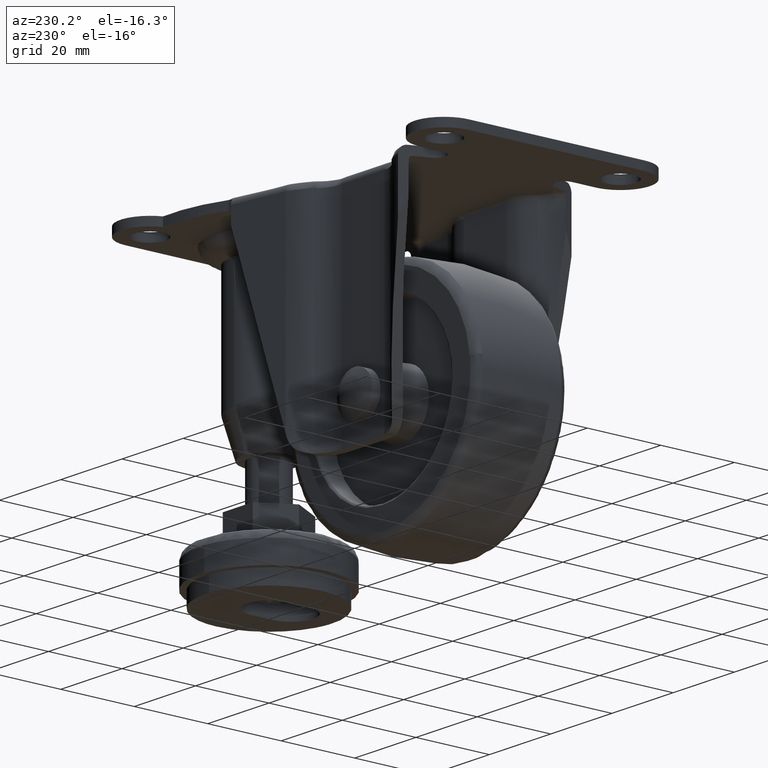
[diagram: clean part render]
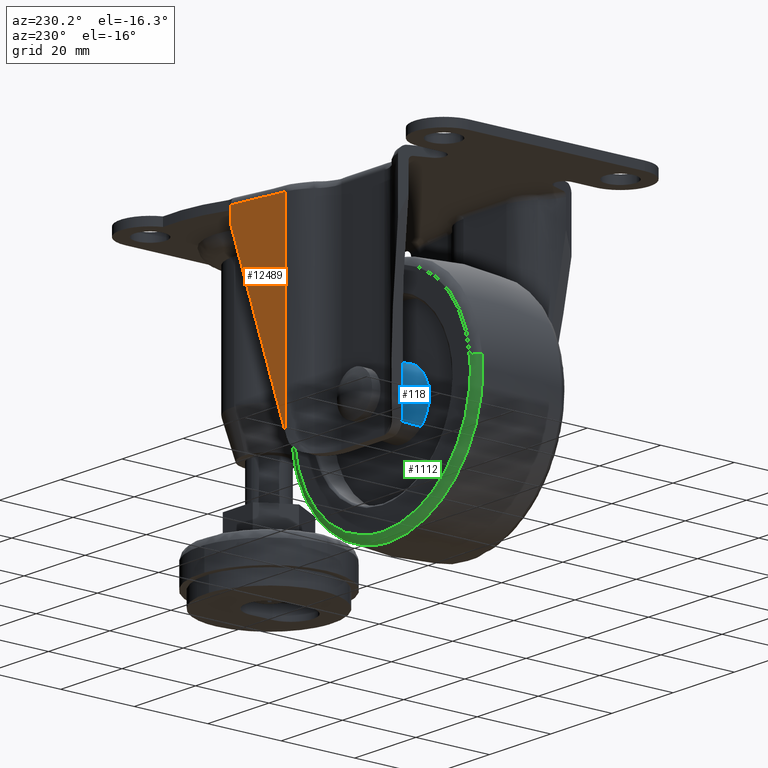
[diagram: same view with three faces highlighted in distinct colors, each labeled with its STEP entity id]
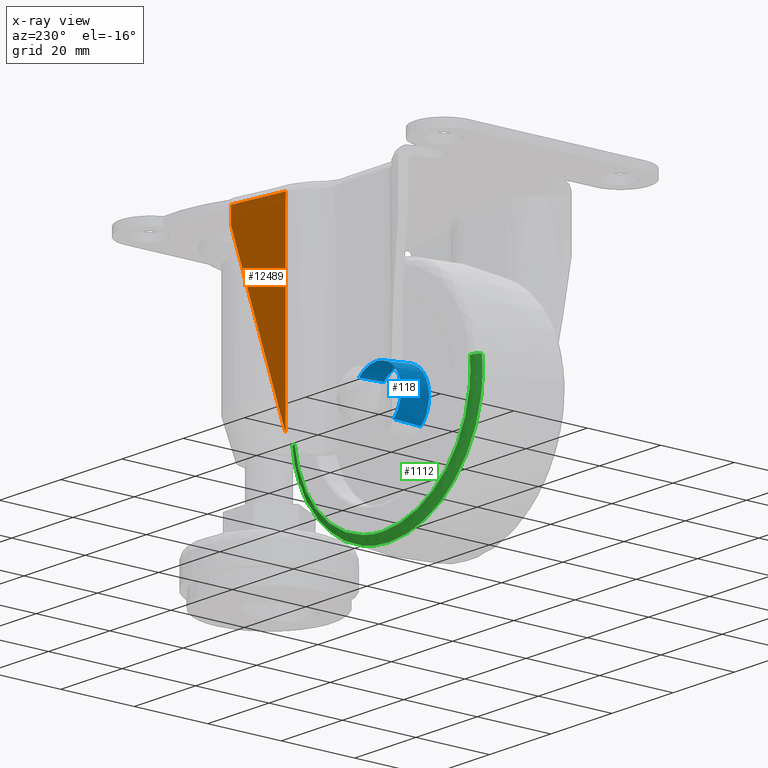
[diagram: x-ray of the same camera — body ghosted, the three highlighted faces saturated]
A machine part, auxiliary view with three faces highlighted in distinct colors.
The next image is the same camera in x-ray (body ghosted, the three faces saturated) — at least one of them is partly hidden behind the body in this view.
Their STEP definitions:

[orange] entity #12489 — the highlighted face is a freeform B-spline surface patch.
#11094=CARTESIAN_POINT('',(33.500000000000000,25.750004000000001,45.200004000000000));
#11095=VERTEX_POINT('',#11094);
#11354=CARTESIAN_POINT('',(18.542398064138251,23.323109709481098,47.500003999999997));
#11355=VERTEX_POINT('',#11354);
#11413=CARTESIAN_POINT('',(33.500000803653897,25.750003792884652,47.500003999999997));
#11414=VERTEX_POINT('',#11413);
#11452=CARTESIAN_POINT('',(18.542398064138251,23.323109709481098,47.500003999999997));
#11453=CARTESIAN_POINT('',(33.500000803653897,25.750003792884652,47.500003999999997));
#11454=QUASI_UNIFORM_CURVE('',1,(#11452,#11453),.UNSPECIFIED.,.F.,.U.);
#11455=EDGE_CURVE('',#11355,#11414,#11454,.T.);
#11937=CARTESIAN_POINT('',(18.542398064138251,23.323109709481098,-5.314302598472650));
#11938=VERTEX_POINT('',#11937);
#11952=CARTESIAN_POINT('',(33.500000000000000,25.750004000000050,43.035134296882703));
#11953=VERTEX_POINT('',#11952);
#11954=CARTESIAN_POINT('',(18.542398064138251,23.323109709481098,-5.314302598472650));
#11955=CARTESIAN_POINT('',(33.500000000000000,25.750004000000050,43.035134296882703));
#11956=QUASI_UNIFORM_CURVE('',1,(#11954,#11955),.UNSPECIFIED.,.F.,.U.);
#11957=EDGE_CURVE('',#11938,#11953,#11956,.T.);
#12261=CARTESIAN_POINT('',(33.500000000000000,25.750004000000001,45.200004000000000));
#12262=CARTESIAN_POINT('',(33.500000000000000,25.750004000000050,43.035134296882703));
#12263=QUASI_UNIFORM_CURVE('',1,(#12261,#12262),.UNSPECIFIED.,.F.,.U.);
#12264=EDGE_CURVE('',#11095,#11953,#12263,.T.);
#12463=CARTESIAN_POINT('',(18.542398064138251,23.323109709481098,-5.314302598472650));
#12464=CARTESIAN_POINT('',(18.542398064138251,23.323109709481098,47.500003999999997));
#12465=QUASI_UNIFORM_CURVE('',1,(#12463,#12464),.UNSPECIFIED.,.F.,.U.);
#12466=EDGE_CURVE('',#11938,#11355,#12465,.T.);
#12473=CARTESIAN_POINT('',(34.247133031501967,25.871227147646870,-7.952377110701985));
#12474=CARTESIAN_POINT('',(17.795265435095999,23.201886289624550,-7.952377110701985));
#12475=CARTESIAN_POINT('',(34.247133031501967,25.871227147646870,50.138079928819437));
#12476=CARTESIAN_POINT('',(17.795265435095999,23.201886289624561,50.138079928819437));
#12477=B_SPLINE_SURFACE_WITH_KNOTS('',1,1,((#12473,#12475),(#12474,#12476)),.UNSPECIFIED.,.F.,.F.,.U.,(2,2),(2,2),(0.0,16.667013170510788),(0.0,58.090457039521432),.UNSPECIFIED.);
#12478=ORIENTED_EDGE('',*,*,#12466,.T.);
#12479=ORIENTED_EDGE('',*,*,#11455,.T.);
#12480=CARTESIAN_POINT('',(33.500000000000000,25.750004000000001,45.200004000000000));
#12481=CARTESIAN_POINT('',(33.500000803653897,25.750003792884652,47.500003999999997));
#12482=QUASI_UNIFORM_CURVE('',1,(#12480,#12481),.UNSPECIFIED.,.F.,.U.);
#12483=EDGE_CURVE('',#11095,#11414,#12482,.T.);
#12484=ORIENTED_EDGE('',*,*,#12483,.F.);
#12485=ORIENTED_EDGE('',*,*,#12264,.T.);
#12486=ORIENTED_EDGE('',*,*,#11957,.F.);
#12487=EDGE_LOOP('',(#12478,#12479,#12484,#12485,#12486));
#12488=FACE_OUTER_BOUND('',#12487,.T.);
#12489=ADVANCED_FACE('',(#12488),#12477,.T.);

[blue] entity #118 — the highlighted face is a freeform B-spline surface patch.
#5=CARTESIAN_POINT('',(5.652432275909977,14.264335924999900,5.751911079907266));
#6=CARTESIAN_POINT('',(-0.099478803997290,14.264335924999894,11.404298355816950));
#7=CARTESIAN_POINT('',(-5.751866079906968,14.264335924999900,5.652387275909682));
#8=CARTESIAN_POINT('',(-11.404253355816650,14.264335924999894,-0.099523803997592));
#9=CARTESIAN_POINT('',(-5.652342275909383,14.264335924999900,-5.751911079907266));
#10=CARTESIAN_POINT('',(6.109032088894459,6.818391601875002,6.216550425229961));
#11=CARTESIAN_POINT('',(-0.107518336335506,6.818391601875002,12.325537514124122));
#12=CARTESIAN_POINT('',(-6.216505425229663,6.818391601875002,6.108987088894160));
#13=CARTESIAN_POINT('',(-12.325492514123821,6.818391601875002,-0.107563336335801));
#14=CARTESIAN_POINT('',(-6.108942088893862,6.818391601875002,-6.216550425229961));
#22=(BOUNDED_SURFACE()B_SPLINE_SURFACE(2,1,((#5,#10),(#6,#11),(#7,#12),(#8,#13),(#9,#14)),.UNSPECIFIED.,.F.,.F.,.U.)B_SPLINE_SURFACE_WITH_KNOTS((3,2,3),(2,2),(0.0,14.440815286468069,28.881630572936139),(0.0,7.474386929609361),.UNSPECIFIED.)GEOMETRIC_REPRESENTATION_ITEM()RATIONAL_B_SPLINE_SURFACE(((1.0,1.0),(0.707106781186548,0.707106781186548),(1.0,1.0),(0.707106781186548,0.707106781186548),(1.0,1.0)))REPRESENTATION_ITEM('')SURFACE());
#23=CARTESIAN_POINT('',(0.000045000000299,14.087156790586000,8.079862606417215));
#24=VERTEX_POINT('',#23);
#25=CARTESIAN_POINT('',(5.663296372245085,14.087159150350759,5.762966621568523));
#26=VERTEX_POINT('',#25);
#27=CARTESIAN_POINT('',(0.000045000000299,14.087156790586000,8.079862606417215));
#28=CARTESIAN_POINT('',(3.305604419034417,14.087157960179244,8.079862880653693));
#29=CARTESIAN_POINT('',(5.663296372245085,14.087159150350766,5.762966621568523));
#37=(BOUNDED_CURVE()B_SPLINE_CURVE(2,(#27,#28,#29),.UNSPECIFIED.,.F.,.U.)B_SPLINE_CURVE_WITH_KNOTS((3,3),(0.0,0.123683221763282),.UNSPECIFIED.)CURVE()GEOMETRIC_REPRESENTATION_ITEM()RATIONAL_B_SPLINE_CURVE((1.0,0.855096092258138,0.853569641761098))REPRESENTATION_ITEM(''));
#38=EDGE_CURVE('',#24,#26,#37,.T.);
#39=ORIENTED_EDGE('',*,*,#38,.F.);
#40=CARTESIAN_POINT('',(-8.056863060266181,14.087156789133999,0.608630326254016));
#41=VERTEX_POINT('',#40);
#42=CARTESIAN_POINT('',(-8.056863060266181,14.087156789134001,0.608630326254016));
#43=CARTESIAN_POINT('',(-7.492474817651917,14.087156741450144,8.079862563331751));
#44=CARTESIAN_POINT('',(0.000045000000299,14.087156790586000,8.079862606417215));
#52=(BOUNDED_CURVE()B_SPLINE_CURVE(2,(#42,#43,#44),.UNSPECIFIED.,.F.,.U.)B_SPLINE_CURVE_WITH_KNOTS((3,3),(0.763129867999661,1.0),.UNSPECIFIED.)CURVE()GEOMETRIC_REPRESENTATION_ITEM()RATIONAL_B_SPLINE_CURVE((0.970850577358118,0.722489378390614,1.0))REPRESENTATION_ITEM(''));
#53=EDGE_CURVE('',#41,#24,#52,.T.);
#54=ORIENTED_EDGE('',*,*,#53,.F.);
#55=CARTESIAN_POINT('',(-5.663206975331306,14.087159226982919,-5.762967244792463));
#56=VERTEX_POINT('',#55);
#57=CARTESIAN_POINT('',(-5.663206975331307,14.087159226982925,-5.762967244792464));
#58=CARTESIAN_POINT('',(-8.079819083132273,14.087158128357105,-3.388168976630497));
#59=CARTESIAN_POINT('',(-8.079818892208188,14.087156990645161,-0.000001271136185));
#60=CARTESIAN_POINT('',(-8.079818875035521,14.087156888313666,0.304747440004810));
#61=CARTESIAN_POINT('',(-8.056863060266181,14.087156789134001,0.608630326254016));
#69=(BOUNDED_CURVE()B_SPLINE_CURVE(2,(#57,#58,#59,#60,#61),.UNSPECIFIED.,.F.,.U.)B_SPLINE_CURVE_WITH_KNOTS((3,2,3),(0.623683252366964,0.750000000000000,0.763129867999661),.UNSPECIFIED.)CURVE()GEOMETRIC_REPRESENTATION_ITEM()RATIONAL_B_SPLINE_CURVE((0.853569641005709,0.852010724782854,1.0,0.984617402795934,0.970850577358118))REPRESENTATION_ITEM(''));
#70=EDGE_CURVE('',#56,#41,#69,.T.);
#71=ORIENTED_EDGE('',*,*,#70,.F.);
#72=CARTESIAN_POINT('',(-6.097805508089479,6.999999999999996,-6.205217758270756));
#73=VERTEX_POINT('',#72);
#74=CARTESIAN_POINT('',(-5.663206975331306,14.087159226982919,-5.762967244792463));
#75=CARTESIAN_POINT('',(-6.097805508089479,6.999999999999996,-6.205217758270756));
#76=QUASI_UNIFORM_CURVE('',1,(#74,#75),.UNSPECIFIED.,.F.,.U.);
#77=EDGE_CURVE('',#56,#73,#76,.T.);
#78=ORIENTED_EDGE('',*,*,#77,.T.);
#79=CARTESIAN_POINT('',(0.000045000000299,7.0,8.699914266621796));
#80=VERTEX_POINT('',#79);
#81=CARTESIAN_POINT('',(-6.097805508089593,6.999999999999999,-6.205217758270636));
#82=CARTESIAN_POINT('',(-8.699869266621498,6.999999999999999,-3.648176824308614));
#83=CARTESIAN_POINT('',(-8.699869266621498,7.0,0.0));
#84=CARTESIAN_POINT('',(-8.699869266621498,6.999999999999999,8.699914266621796));
#85=CARTESIAN_POINT('',(0.000045000000299,7.0,8.699914266621796));
#93=(BOUNDED_CURVE()B_SPLINE_CURVE(2,(#81,#82,#83,#84,#85),.UNSPECIFIED.,.F.,.U.)B_SPLINE_CURVE_WITH_KNOTS((3,2,3),(0.623683242408914,0.750000000000000,1.0),.UNSPECIFIED.)CURVE()GEOMETRIC_REPRESENTATION_ITEM()RATIONAL_B_SPLINE_CURVE((0.853569641251501,0.852010713116274,1.0,0.707106781186548,1.0))REPRESENTATION_ITEM(''));
#94=EDGE_CURVE('',#73,#80,#93,.T.);
#95=ORIENTED_EDGE('',*,*,#94,.T.);
#96=CARTESIAN_POINT('',(6.097895508090073,6.999999999999996,6.205217758270756));
#97=VERTEX_POINT('',#96);
#98=CARTESIAN_POINT('',(0.000045000000299,7.0,8.699914266621796));
#99=CARTESIAN_POINT('',(3.559273897970496,7.0,8.699914266621796));
#100=CARTESIAN_POINT('',(6.097895508090191,6.999999999999999,6.205217758270649));
#108=(BOUNDED_CURVE()B_SPLINE_CURVE(2,(#98,#99,#100),.UNSPECIFIED.,.F.,.U.)B_SPLINE_CURVE_WITH_KNOTS((3,3),(0.0,0.123683242408914),.UNSPECIFIED.)CURVE()GEOMETRIC_REPRESENTATION_ITEM()RATIONAL_B_SPLINE_CURVE((1.0,0.855096068070274,0.853569641251501))REPRESENTATION_ITEM(''));
#109=EDGE_CURVE('',#80,#97,#108,.T.);
#110=ORIENTED_EDGE('',*,*,#109,.T.);
#111=CARTESIAN_POINT('',(5.663296372245085,14.087159150350759,5.762966621568523));
#112=CARTESIAN_POINT('',(6.097895508090073,6.999999999999996,6.205217758270756));
#113=QUASI_UNIFORM_CURVE('',1,(#111,#112),.UNSPECIFIED.,.F.,.U.);
#114=EDGE_CURVE('',#26,#97,#113,.T.);
#115=ORIENTED_EDGE('',*,*,#114,.F.);
#116=EDGE_LOOP('',(#39,#54,#71,#78,#95,#110,#115));
#117=FACE_OUTER_BOUND('',#116,.T.);
#118=ADVANCED_FACE('',(#117),#22,.T.);

[green] entity #1112 — the highlighted face is a freeform B-spline surface patch.
#954=CARTESIAN_POINT('',(28.606152398891499,12.500000000000000,-3.249139610845788));
#955=VERTEX_POINT('',#954);
#971=CARTESIAN_POINT('',(0.000045000000299,12.500000000000000,-28.790038000000010));
#972=VERTEX_POINT('',#971);
#973=CARTESIAN_POINT('',(28.606152398891492,12.499999999999995,-3.249139610845787));
#974=CARTESIAN_POINT('',(25.705165428894134,12.500000000000000,-28.790038000672517));
#975=CARTESIAN_POINT('',(0.000045000000299,12.500000000000000,-28.790038000000010));
#983=(BOUNDED_CURVE()B_SPLINE_CURVE(2,(#973,#974,#975),.UNSPECIFIED.,.F.,.U.)B_SPLINE_CURVE_WITH_KNOTS((3,3),(0.269555763446021,0.500000000000000),.UNSPECIFIED.)CURVE()GEOMETRIC_REPRESENTATION_ITEM()RATIONAL_B_SPLINE_CURVE((0.957762333068199,0.730017783194786,1.0))REPRESENTATION_ITEM(''));
#984=EDGE_CURVE('',#955,#972,#983,.T.);
#986=CARTESIAN_POINT('',(-28.606062398890899,12.500000000000000,3.249139610845788));
#987=VERTEX_POINT('',#986);
#988=CARTESIAN_POINT('',(0.000045000000299,12.500000000000000,-28.790038000000010));
#989=CARTESIAN_POINT('',(-28.789993005286043,12.499999999999998,-28.790037999399587));
#990=CARTESIAN_POINT('',(-28.789993011206821,12.500000000000000,1.272937E-009));
#991=CARTESIAN_POINT('',(-28.789993011541991,12.499999999999998,1.629775872042899));
#992=CARTESIAN_POINT('',(-28.606062398890895,12.499999999999995,3.249139610845787));
#1000=(BOUNDED_CURVE()B_SPLINE_CURVE(2,(#988,#989,#990,#991,#992),.UNSPECIFIED.,.F.,.U.)B_SPLINE_CURVE_WITH_KNOTS((3,2,3),(0.500000000000000,0.750000000000000,0.769555763446021),.UNSPECIFIED.)CURVE()GEOMETRIC_REPRESENTATION_ITEM()RATIONAL_B_SPLINE_CURVE((1.0,0.707106781186547,1.0,0.977088997991762,0.957762333068199))REPRESENTATION_ITEM(''));
#1001=EDGE_CURVE('',#972,#987,#1000,.T.);
#1025=CARTESIAN_POINT('',(30.588507365092234,10.639899120161196,-3.474299502041852));
#1026=CARTESIAN_POINT('',(27.114207863050368,10.639899120161196,-34.062761867133780));
#1027=CARTESIAN_POINT('',(-3.474254502041557,10.639899120161196,-30.588462365091925));
#1028=CARTESIAN_POINT('',(-34.062716867133481,10.639899120161196,-27.114162863050069));
#1029=CARTESIAN_POINT('',(-30.588417365091626,10.639899120161196,3.474299502041866));
#1030=CARTESIAN_POINT('',(30.450227633940468,12.624585621808215,-3.458593410138682));
#1031=CARTESIAN_POINT('',(26.991634223801782,12.624585621808215,-33.908776044078856));
#1032=CARTESIAN_POINT('',(-3.458548410138380,12.624585621808215,-30.450182633940173));
#1033=CARTESIAN_POINT('',(-33.908731044078536,12.624585621808215,-26.991589223801508));
#1034=CARTESIAN_POINT('',(-30.450137633939878,12.624585621808215,3.458593410138682));
#1035=CARTESIAN_POINT('',(28.477523973196202,12.495805923096491,-3.234529733305373));
#1036=CARTESIAN_POINT('',(25.242994239890837,12.495805923096485,-31.712008706501265));
#1037=CARTESIAN_POINT('',(-3.234484733305067,12.495805923096491,-28.477478973195904));
#1038=CARTESIAN_POINT('',(-31.711963706500967,12.495805923096485,-25.242949239890557));
#1039=CARTESIAN_POINT('',(-28.477433973195591,12.495805923096491,3.234529733305373));
#1047=(BOUNDED_SURFACE()B_SPLINE_SURFACE(2,2,((#1025,#1030,#1035),(#1026,#1031,#1036),(#1027,#1032,#1037),(#1028,#1033,#1038),(#1029,#1034,#1039)),.UNSPECIFIED.,.F.,.F.,.U.)B_SPLINE_SURFACE_WITH_KNOTS((3,2,3),(3,3),(0.0,51.006488471348533,102.012976942697090),(0.0,3.301448363809395),.UNSPECIFIED.)GEOMETRIC_REPRESENTATION_ITEM()RATIONAL_B_SPLINE_SURFACE(((0.914164343485605,0.649321392864194,0.917609932468653),(0.646411806397620,0.459139560063766,0.648848205732715),(0.914164343485605,0.649321392864194,0.917609932468653),(0.646411806397620,0.459139560063766,0.648848205732715),(0.914164343485605,0.649321392864194,0.917609932468653)))REPRESENTATION_ITEM('')SURFACE());
#1048=ORIENTED_EDGE('',*,*,#984,.F.);
#1049=CARTESIAN_POINT('',(30.575288528896358,10.769211879417320,-3.472798079883553));
#1050=VERTEX_POINT('',#1049);
#1051=CARTESIAN_POINT('',(30.575288528896355,10.769211879417320,-3.472798079883560));
#1052=CARTESIAN_POINT('',(30.341676976168394,12.499999910384849,-3.446264006837956));
#1053=CARTESIAN_POINT('',(28.606152398891499,12.499999999999998,-3.249139610845787));
#1061=(BOUNDED_CURVE()B_SPLINE_CURVE(2,(#1051,#1052,#1053),.UNSPECIFIED.,.F.,.U.)B_SPLINE_CURVE_WITH_KNOTS((3,3),(-1.706813092953588,-0.283065978826820),.UNSPECIFIED.)CURVE()GEOMETRIC_REPRESENTATION_ITEM()RATIONAL_B_SPLINE_CURVE((0.891209072892544,0.672433120709332,0.894341747895728))REPRESENTATION_ITEM(''));
#1062=EDGE_CURVE('',#1050,#955,#1061,.T.);
#1063=ORIENTED_EDGE('',*,*,#1062,.F.);
#1064=CARTESIAN_POINT('',(0.000045000000299,10.769211724988971,-30.771836605581509));
#1065=VERTEX_POINT('',#1064);
#1066=CARTESIAN_POINT('',(30.575288528896351,10.769211879417323,-3.472798079883553));
#1067=CARTESIAN_POINT('',(27.474608402264508,10.769211804697839,-30.771836671378100));
#1068=CARTESIAN_POINT('',(0.000045000000299,10.769211724988971,-30.771836605581509));
#1076=(BOUNDED_CURVE()B_SPLINE_CURVE(2,(#1066,#1067,#1068),.UNSPECIFIED.,.F.,.U.)B_SPLINE_CURVE_WITH_KNOTS((3,3),(0.269555761651978,0.500000000000000),.UNSPECIFIED.)CURVE()GEOMETRIC_REPRESENTATION_ITEM()RATIONAL_B_SPLINE_CURVE((0.957762336614250,0.730017781092934,1.0))REPRESENTATION_ITEM(''));
#1077=EDGE_CURVE('',#1050,#1065,#1076,.T.);
#1078=ORIENTED_EDGE('',*,*,#1077,.T.);
#1079=CARTESIAN_POINT('',(-30.575198524274100,10.769211878779840,3.472798079358611));
#1080=VERTEX_POINT('',#1079);
#1081=CARTESIAN_POINT('',(0.000045000000299,10.769211724988971,-30.771836605581509));
#1082=CARTESIAN_POINT('',(-30.771789545177704,10.769211796438972,-30.771836546600774));
#1083=CARTESIAN_POINT('',(-30.771790126776150,10.769211870839710,0.000000083821462));
#1084=CARTESIAN_POINT('',(-30.771790159699865,10.769211875051463,1.741963512716438));
#1085=CARTESIAN_POINT('',(-30.575198524274104,10.769211878779835,3.472798079358611));
#1093=(BOUNDED_CURVE()B_SPLINE_CURVE(2,(#1081,#1082,#1083,#1084,#1085),.UNSPECIFIED.,.F.,.U.)B_SPLINE_CURVE_WITH_KNOTS((3,2,3),(0.500000000000000,0.750000000000000,0.769555762102657),.UNSPECIFIED.)CURVE()GEOMETRIC_REPRESENTATION_ITEM()RATIONAL_B_SPLINE_CURVE((1.0,0.707106781186547,1.0,0.977088999565611,0.957762335723452))REPRESENTATION_ITEM(''));
#1094=EDGE_CURVE('',#1065,#1080,#1093,.T.);
#1095=ORIENTED_EDGE('',*,*,#1094,.T.);
#1096=CARTESIAN_POINT('',(-30.575198524274104,10.769211878779837,3.472798079358612));
#1097=CARTESIAN_POINT('',(-30.341586973861482,12.499999910068869,3.446264006576002));
#1098=CARTESIAN_POINT('',(-28.606062398890899,12.499999999999998,3.249139610845787));
#1106=(BOUNDED_CURVE()B_SPLINE_CURVE(2,(#1096,#1097,#1098),.UNSPECIFIED.,.F.,.U.)B_SPLINE_CURVE_WITH_KNOTS((3,3),(-1.706813092956601,-0.283065978826820),.UNSPECIFIED.)CURVE()GEOMETRIC_REPRESENTATION_ITEM()RATIONAL_B_SPLINE_CURVE((0.891209072893470,0.672433120708863,0.894341747895728))REPRESENTATION_ITEM(''));
#1107=EDGE_CURVE('',#1080,#987,#1106,.T.);
#1108=ORIENTED_EDGE('',*,*,#1107,.T.);
#1109=ORIENTED_EDGE('',*,*,#1001,.F.);
#1110=EDGE_LOOP('',(#1048,#1063,#1078,#1095,#1108,#1109));
#1111=FACE_OUTER_BOUND('',#1110,.T.);
#1112=ADVANCED_FACE('',(#1111),#1047,.T.);